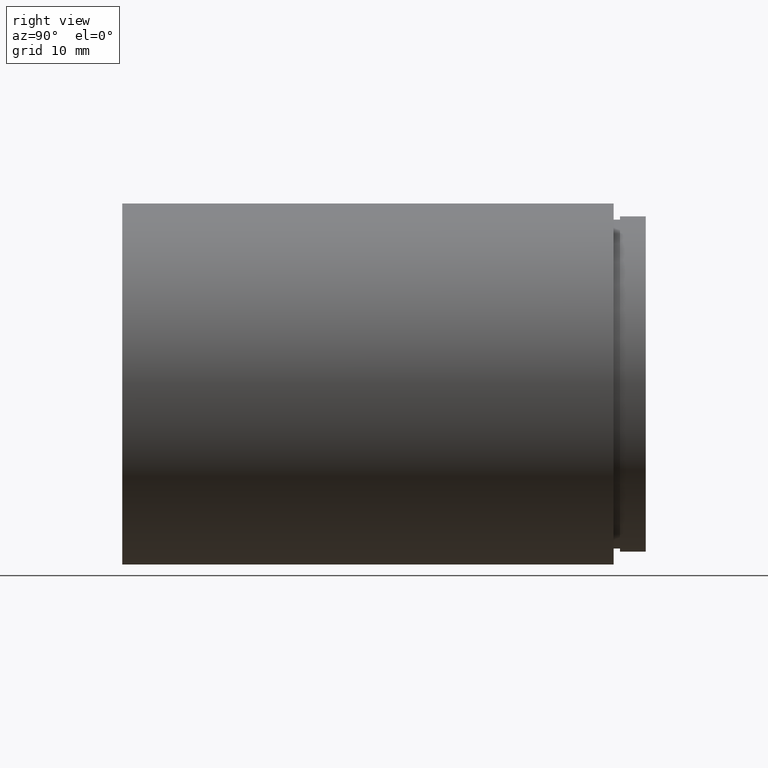
[diagram: clean part render]
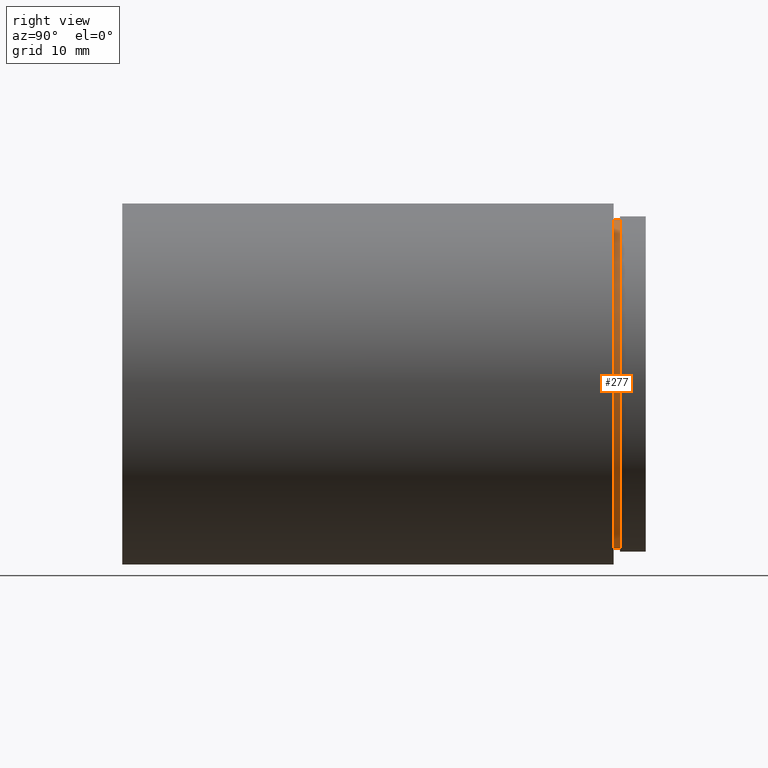
[diagram: same view with one face highlighted and labeled with its STEP entity id]
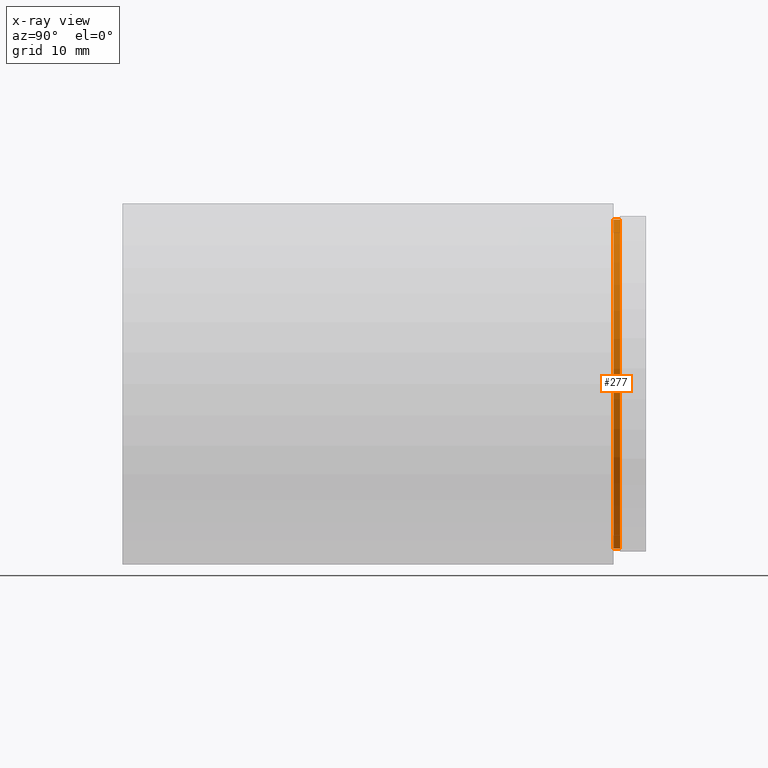
[diagram: x-ray of the same camera — body ghosted, the highlighted face saturated]
A machine part, right view. The second image highlights one B-rep face of the part: STEP entity #277.
The next image is the same camera in x-ray: the body ghosted, the highlighted face saturated — about 0% of this face is hidden behind the body in this view.
In plain terms, the highlighted cylindrical surface (partial cylindrical patch) has radius 25.5 mm, axis along (-0, 1, -0).
Its self-contained STEP definition (entity closure, byte-faithful):
#2 = DIRECTION ( 'NONE',  ( -0.0000000000000000000, 1.000000000000000000, -0.0000000000000000000 ) ) ;
#7 = DIRECTION ( 'NONE',  ( -0.0000000000000000000, 1.000000000000000000, -0.0000000000000000000 ) ) ;
#45 = AXIS2_PLACEMENT_3D ( 'NONE', #89, #432, #139 ) ;
#47 = VERTEX_POINT ( 'NONE', #169 ) ;
#57 = DIRECTION ( 'NONE',  ( 0.0000000000000000000, 0.0000000000000000000, 1.000000000000000000 ) ) ;
#78 = ORIENTED_EDGE ( 'NONE', *, *, #339, .T. ) ;
#89 = CARTESIAN_POINT ( 'NONE',  ( 0.0000000000000000000, 161.3761669434274500, 0.0000000000000000000 ) ) ;
#107 = AXIS2_PLACEMENT_3D ( 'NONE', #244, #2, #396 ) ;
#113 = ORIENTED_EDGE ( 'NONE', *, *, #263, .T. ) ;
#129 = AXIS2_PLACEMENT_3D ( 'NONE', #351, #7, #57 ) ;
#139 = DIRECTION ( 'NONE',  ( 0.0000000000000000000, 0.0000000000000000000, 1.000000000000000000 ) ) ;
#169 = CARTESIAN_POINT ( 'NONE',  ( 3.122849337825751400E-015, 77.19999999999998900, -25.50000000000000400 ) ) ;
#192 = DIRECTION ( 'NONE',  ( -0.0000000000000000000, 1.000000000000000000, -0.0000000000000000000 ) ) ;
#196 = CIRCLE ( 'NONE', #129, 25.50000000000000400 ) ;
#242 = CIRCLE ( 'NONE', #107, 25.50000000000000700 ) ;
#244 = CARTESIAN_POINT ( 'NONE',  ( 0.0000000000000000000, 76.19999999999998900, 0.0000000000000000000 ) ) ;
#245 = CARTESIAN_POINT ( 'NONE',  ( 0.0000000000000000000, 76.19999999999998900, 25.50000000000000700 ) ) ;
#247 = ORIENTED_EDGE ( 'NONE', *, *, #572, .F. ) ;
#249 = FACE_OUTER_BOUND ( 'NONE', #601, .T. ) ;
#263 = EDGE_CURVE ( 'NONE', #413, #47, #324, .T. ) ;
#277 = ADVANCED_FACE ( 'NONE', ( #249 ), #487, .T. ) ;
#291 = EDGE_CURVE ( 'NONE', #414, #370, #504, .T. ) ;
#324 = LINE ( 'NONE', #383, #478 ) ;
#339 = EDGE_CURVE ( 'NONE', #414, #413, #242, .T. ) ;
#351 = CARTESIAN_POINT ( 'NONE',  ( 0.0000000000000000000, 77.19999999999998900, 0.0000000000000000000 ) ) ;
#370 = VERTEX_POINT ( 'NONE', #525 ) ;
#383 = CARTESIAN_POINT ( 'NONE',  ( 3.122849337825751800E-015, 161.3761669434274500, -25.50000000000000700 ) ) ;
#396 = DIRECTION ( 'NONE',  ( 0.0000000000000000000, 0.0000000000000000000, 1.000000000000000000 ) ) ;
#398 = CARTESIAN_POINT ( 'NONE',  ( 0.0000000000000000000, 161.3761669434274500, 25.50000000000000700 ) ) ;
#413 = VERTEX_POINT ( 'NONE', #441 ) ;
#414 = VERTEX_POINT ( 'NONE', #245 ) ;
#432 = DIRECTION ( 'NONE',  ( -0.0000000000000000000, 1.000000000000000000, -0.0000000000000000000 ) ) ;
#441 = CARTESIAN_POINT ( 'NONE',  ( 3.122849337825751800E-015, 76.19999999999998900, -25.50000000000000700 ) ) ;
#478 = VECTOR ( 'NONE', #192, 1000.000000000000000 ) ;
#487 = CYLINDRICAL_SURFACE ( 'NONE', #45, 25.50000000000000700 ) ;
#504 = LINE ( 'NONE', #398, #528 ) ;
#525 = CARTESIAN_POINT ( 'NONE',  ( 0.0000000000000000000, 77.19999999999998900, 25.50000000000000400 ) ) ;
#528 = VECTOR ( 'NONE', #577, 1000.000000000000000 ) ;
#572 = EDGE_CURVE ( 'NONE', #370, #47, #196, .T. ) ;
#577 = DIRECTION ( 'NONE',  ( -0.0000000000000000000, 1.000000000000000000, -0.0000000000000000000 ) ) ;
#601 = EDGE_LOOP ( 'NONE', ( #78, #113, #247, #610 ) ) ;
#610 = ORIENTED_EDGE ( 'NONE', *, *, #291, .F. ) ;